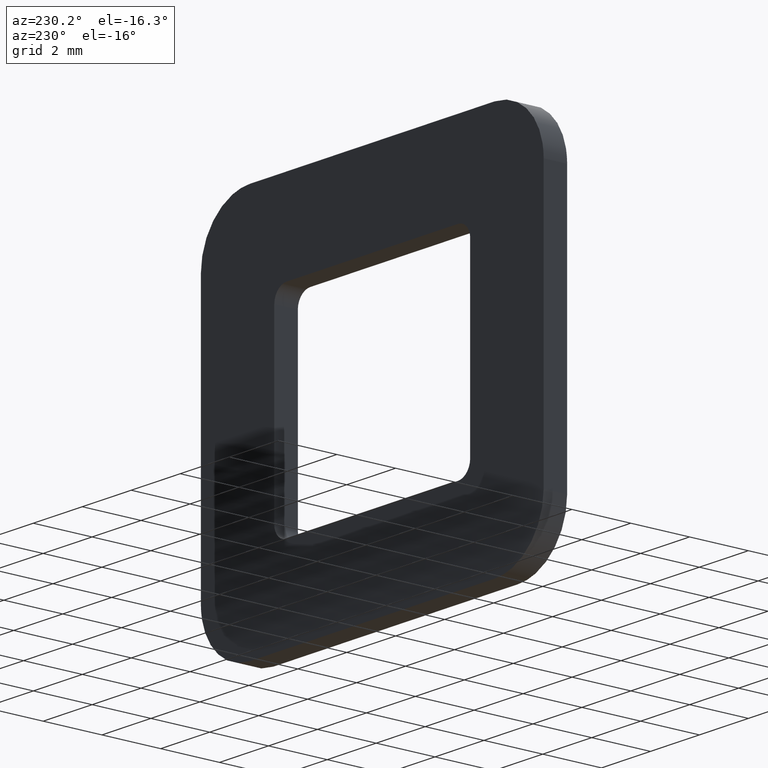
[diagram: clean part render]
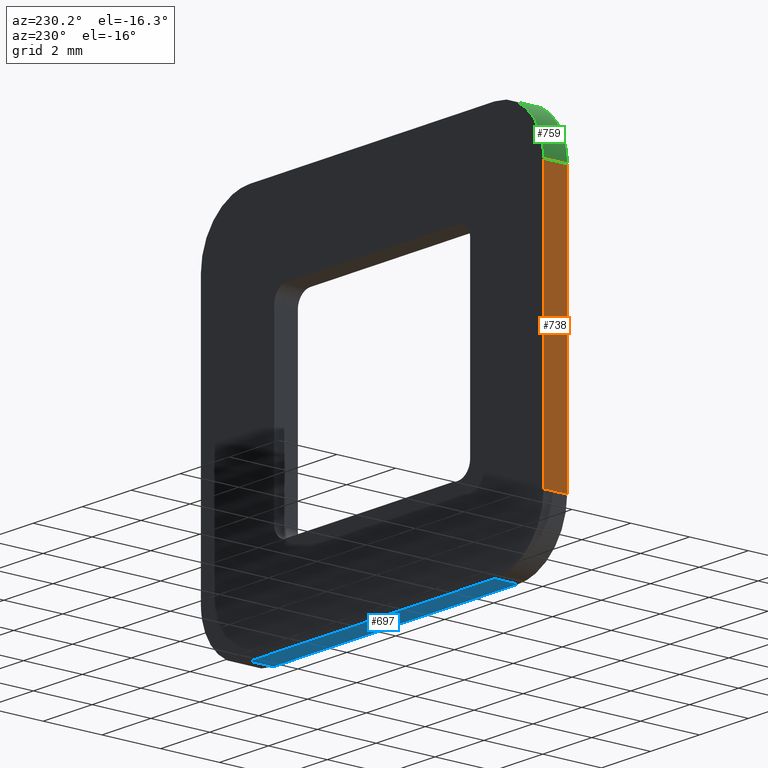
[diagram: same view with three faces highlighted in distinct colors, each labeled with its STEP entity id]
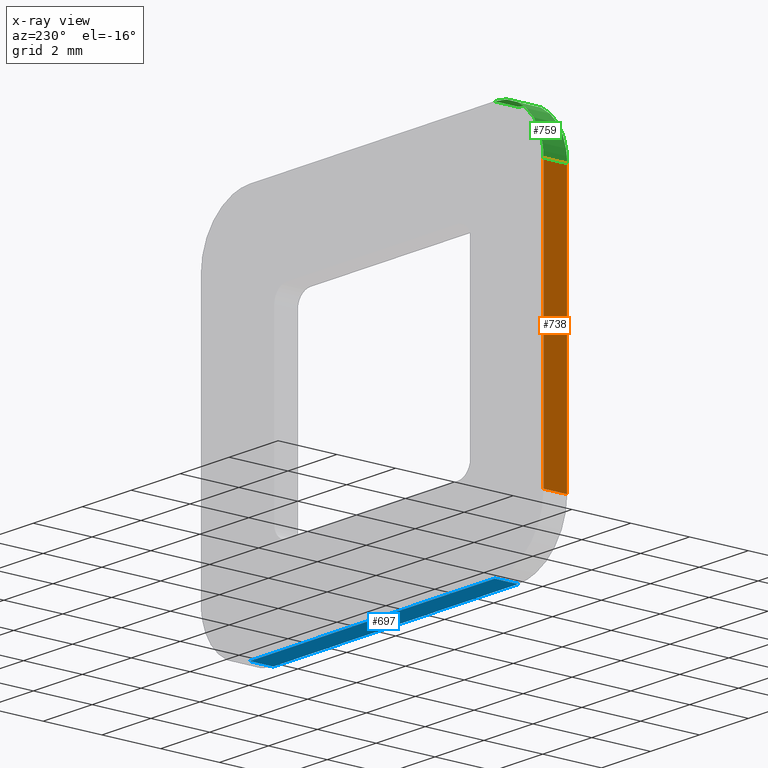
[diagram: x-ray of the same camera — body ghosted, the three highlighted faces saturated]
A machine part, auxiliary view with three faces highlighted in distinct colors.
The next image is the same camera in x-ray (body ghosted, the three faces saturated) — at least one of them is partly hidden behind the body in this view.
Their STEP definitions:

[orange] entity #738 — the highlighted face is a freeform B-spline surface patch.
#383=CARTESIAN_POINT('',(-7.0,0.0,4.500000000000000));
#384=VERTEX_POINT('',#383);
#398=CARTESIAN_POINT('',(-7.0,0.0,-4.500000000000000));
#399=VERTEX_POINT('',#398);
#400=CARTESIAN_POINT('',(-7.0,0.0,4.500000000000000));
#401=CARTESIAN_POINT('',(-7.0,0.0,-4.500000000000000));
#402=QUASI_UNIFORM_CURVE('',1,(#400,#401),.UNSPECIFIED.,.F.,.U.);
#403=EDGE_CURVE('',#384,#399,#402,.T.);
#493=CARTESIAN_POINT('',(-7.0,0.800003000000049,4.500000000000000));
#494=VERTEX_POINT('',#493);
#561=CARTESIAN_POINT('',(-7.0,0.800003000000049,-4.500000000000000));
#562=VERTEX_POINT('',#561);
#578=CARTESIAN_POINT('',(-7.0,0.800003000000049,4.500000000000000));
#579=CARTESIAN_POINT('',(-7.0,0.800003000000049,-4.500000000000000));
#580=QUASI_UNIFORM_CURVE('',1,(#578,#579),.UNSPECIFIED.,.F.,.U.);
#581=EDGE_CURVE('',#494,#562,#580,.T.);
#713=CARTESIAN_POINT('',(-7.0,0.800003000000049,-4.500000000000000));
#714=CARTESIAN_POINT('',(-7.0,0.0,-4.500000000000000));
#715=QUASI_UNIFORM_CURVE('',1,(#713,#714),.UNSPECIFIED.,.F.,.U.);
#716=EDGE_CURVE('',#562,#399,#715,.T.);
#723=CARTESIAN_POINT('',(-7.0,-0.039960148299441,-4.949549982556253));
#724=CARTESIAN_POINT('',(-7.0,-0.039960148299441,4.949550223955065));
#725=CARTESIAN_POINT('',(-7.0,0.839963169757243,-4.949549982556253));
#726=CARTESIAN_POINT('',(-7.0,0.839963169757243,4.949550223955065));
#727=B_SPLINE_SURFACE_WITH_KNOTS('',1,1,((#723,#725),(#724,#726)),.UNSPECIFIED.,.F.,.F.,.U.,(2,2),(2,2),(0.0,9.899100206511317),(0.041708334948495,0.958291687403247),.UNSPECIFIED.);
#728=ORIENTED_EDGE('',*,*,#403,.F.);
#729=CARTESIAN_POINT('',(-7.0,0.800003000000049,4.500000000000000));
#730=CARTESIAN_POINT('',(-7.0,0.0,4.500000000000000));
#731=QUASI_UNIFORM_CURVE('',1,(#729,#730),.UNSPECIFIED.,.F.,.U.);
#732=EDGE_CURVE('',#494,#384,#731,.T.);
#733=ORIENTED_EDGE('',*,*,#732,.F.);
#734=ORIENTED_EDGE('',*,*,#581,.T.);
#735=ORIENTED_EDGE('',*,*,#716,.T.);
#736=EDGE_LOOP('',(#728,#733,#734,#735));
#737=FACE_OUTER_BOUND('',#736,.T.);
#738=ADVANCED_FACE('',(#737),#727,.T.);

[blue] entity #697 — the highlighted face is a freeform B-spline surface patch.
#405=CARTESIAN_POINT('',(-4.999999965093400,0.0,-6.500000000000000));
#406=VERTEX_POINT('',#405);
#422=CARTESIAN_POINT('',(5.0,0.0,-6.500000000000000));
#423=VERTEX_POINT('',#422);
#424=CARTESIAN_POINT('',(-4.999999965093400,0.0,-6.500000000000000));
#425=CARTESIAN_POINT('',(5.0,0.0,-6.500000000000000));
#426=QUASI_UNIFORM_CURVE('',1,(#424,#425),.UNSPECIFIED.,.F.,.U.);
#427=EDGE_CURVE('',#406,#423,#426,.T.);
#539=CARTESIAN_POINT('',(5.0,0.800003000000049,-6.500000000000000));
#540=VERTEX_POINT('',#539);
#554=CARTESIAN_POINT('',(-4.999999965093400,0.800003000000049,-6.500000000000000));
#555=VERTEX_POINT('',#554);
#556=CARTESIAN_POINT('',(-4.999999965093400,0.800003000000049,-6.500000000000000));
#557=CARTESIAN_POINT('',(5.0,0.800003000000049,-6.500000000000000));
#558=QUASI_UNIFORM_CURVE('',1,(#556,#557),.UNSPECIFIED.,.F.,.U.);
#559=EDGE_CURVE('',#555,#540,#558,.T.);
#672=CARTESIAN_POINT('',(5.0,0.800003000000049,-6.500000000000000));
#673=CARTESIAN_POINT('',(5.0,0.0,-6.500000000000000));
#674=QUASI_UNIFORM_CURVE('',1,(#672,#673),.UNSPECIFIED.,.F.,.U.);
#675=EDGE_CURVE('',#540,#423,#674,.T.);
#682=CARTESIAN_POINT('',(5.499499978874475,-0.039960148299441,-6.500000000000000));
#683=CARTESIAN_POINT('',(-5.499500212188774,-0.039960148299441,-6.500000000000000));
#684=CARTESIAN_POINT('',(5.499499978874475,0.839963169757243,-6.500000000000000));
#685=CARTESIAN_POINT('',(-5.499500212188774,0.839963169757243,-6.500000000000000));
#686=B_SPLINE_SURFACE_WITH_KNOTS('',1,1,((#682,#684),(#683,#685)),.UNSPECIFIED.,.F.,.F.,.U.,(2,2),(2,2),(0.0,10.999000191063249),(0.041708334948495,0.958291687403247),.UNSPECIFIED.);
#687=ORIENTED_EDGE('',*,*,#427,.F.);
#688=CARTESIAN_POINT('',(-4.999999965093400,0.800003000000049,-6.500000000000000));
#689=CARTESIAN_POINT('',(-4.999999965093400,0.0,-6.500000000000000));
#690=QUASI_UNIFORM_CURVE('',1,(#688,#689),.UNSPECIFIED.,.F.,.U.);
#691=EDGE_CURVE('',#555,#406,#690,.T.);
#692=ORIENTED_EDGE('',*,*,#691,.F.);
#693=ORIENTED_EDGE('',*,*,#559,.T.);
#694=ORIENTED_EDGE('',*,*,#675,.T.);
#695=EDGE_LOOP('',(#687,#692,#693,#694));
#696=FACE_OUTER_BOUND('',#695,.T.);
#697=ADVANCED_FACE('',(#696),#686,.T.);

[green] entity #759 — the highlighted face is a freeform B-spline surface patch.
#381=CARTESIAN_POINT('',(-5.0,0.0,6.500000000000000));
#382=VERTEX_POINT('',#381);
#383=CARTESIAN_POINT('',(-7.0,0.0,4.500000000000000));
#384=VERTEX_POINT('',#383);
#385=CARTESIAN_POINT('',(-5.0,0.0,6.500000000000000));
#386=CARTESIAN_POINT('',(-6.999999999999999,0.0,6.500000000000001));
#387=CARTESIAN_POINT('',(-7.0,0.0,4.500000000000000));
#395=(BOUNDED_CURVE()B_SPLINE_CURVE(2,(#385,#386,#387),.UNSPECIFIED.,.F.,.U.)CURVE()GEOMETRIC_REPRESENTATION_ITEM()QUASI_UNIFORM_CURVE()RATIONAL_B_SPLINE_CURVE((1.0,0.707106781186548,1.0))REPRESENTATION_ITEM(''));
#396=EDGE_CURVE('',#382,#384,#395,.T.);
#491=CARTESIAN_POINT('',(-5.0,0.800003000000049,6.500000000000000));
#492=VERTEX_POINT('',#491);
#493=CARTESIAN_POINT('',(-7.0,0.800003000000049,4.500000000000000));
#494=VERTEX_POINT('',#493);
#495=CARTESIAN_POINT('',(-5.0,0.800003000000049,6.500000000000000));
#496=CARTESIAN_POINT('',(-6.999999999999999,0.800003000000049,6.500000000000001));
#497=CARTESIAN_POINT('',(-7.0,0.800003000000049,4.500000000000000));
#505=(BOUNDED_CURVE()B_SPLINE_CURVE(2,(#495,#496,#497),.UNSPECIFIED.,.F.,.U.)CURVE()GEOMETRIC_REPRESENTATION_ITEM()QUASI_UNIFORM_CURVE()RATIONAL_B_SPLINE_CURVE((1.0,0.707106781186548,1.0))REPRESENTATION_ITEM(''));
#506=EDGE_CURVE('',#492,#494,#505,.T.);
#608=CARTESIAN_POINT('',(-5.0,0.800003000000049,6.500000000000000));
#609=CARTESIAN_POINT('',(-5.0,0.0,6.500000000000000));
#610=QUASI_UNIFORM_CURVE('',1,(#608,#609),.UNSPECIFIED.,.F.,.U.);
#611=EDGE_CURVE('',#492,#382,#610,.T.);
#729=CARTESIAN_POINT('',(-7.0,0.800003000000049,4.500000000000000));
#730=CARTESIAN_POINT('',(-7.0,0.0,4.500000000000000));
#731=QUASI_UNIFORM_CURVE('',1,(#729,#730),.UNSPECIFIED.,.F.,.U.);
#732=EDGE_CURVE('',#494,#384,#731,.T.);
#739=CARTESIAN_POINT('',(-6.998096443163715,0.820003075000050,4.412761225269327));
#740=CARTESIAN_POINT('',(-6.998096443163715,-0.020500076875001,4.412761225269327));
#741=CARTESIAN_POINT('',(-7.095868981871970,0.820003075000050,6.652120528918071));
#742=CARTESIAN_POINT('',(-7.095868981871970,-0.020500076875001,6.652120528918071));
#743=CARTESIAN_POINT('',(-4.859883815912956,0.820003075000050,6.495085826463834));
#744=CARTESIAN_POINT('',(-4.859883815912956,-0.020500076875001,6.495085826463834));
#752=(BOUNDED_SURFACE()B_SPLINE_SURFACE(1,2,((#739,#741,#743),(#740,#742,#744)),.UNSPECIFIED.,.F.,.F.,.U.)B_SPLINE_SURFACE_WITH_KNOTS((2,2),(3,3),(0.0,1.0),(0.0,3.583485079683967),.UNSPECIFIED.)GEOMETRIC_REPRESENTATION_ITEM()RATIONAL_B_SPLINE_SURFACE(((1.0,0.664513898535122,0.996233561259061),(1.0,0.664513898535122,0.996233561259061)))REPRESENTATION_ITEM('')SURFACE());
#753=ORIENTED_EDGE('',*,*,#396,.F.);
#754=ORIENTED_EDGE('',*,*,#611,.F.);
#755=ORIENTED_EDGE('',*,*,#506,.T.);
#756=ORIENTED_EDGE('',*,*,#732,.T.);
#757=EDGE_LOOP('',(#753,#754,#755,#756));
#758=FACE_OUTER_BOUND('',#757,.T.);
#759=ADVANCED_FACE('',(#758),#752,.T.);